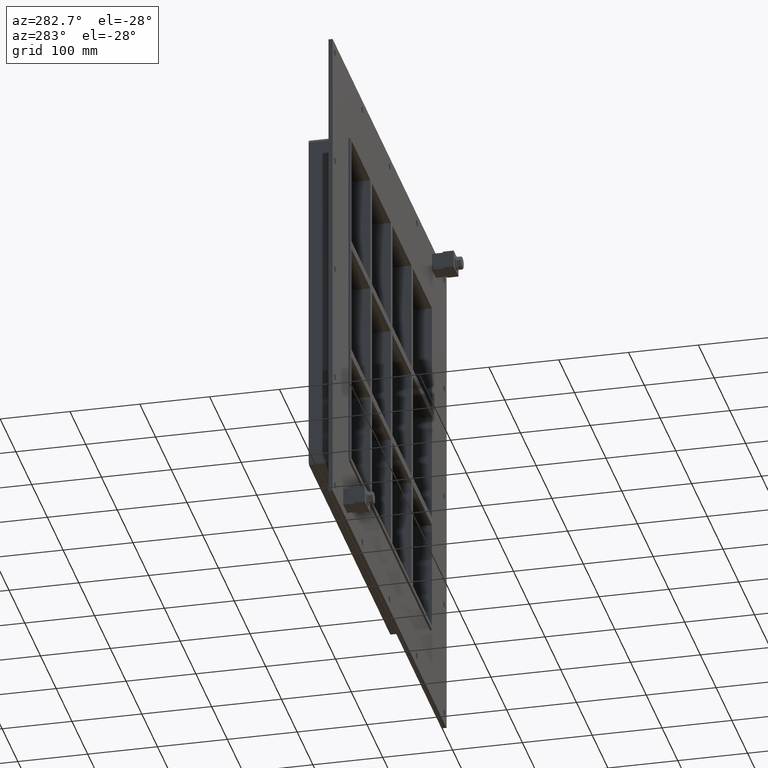
[diagram: clean part render]
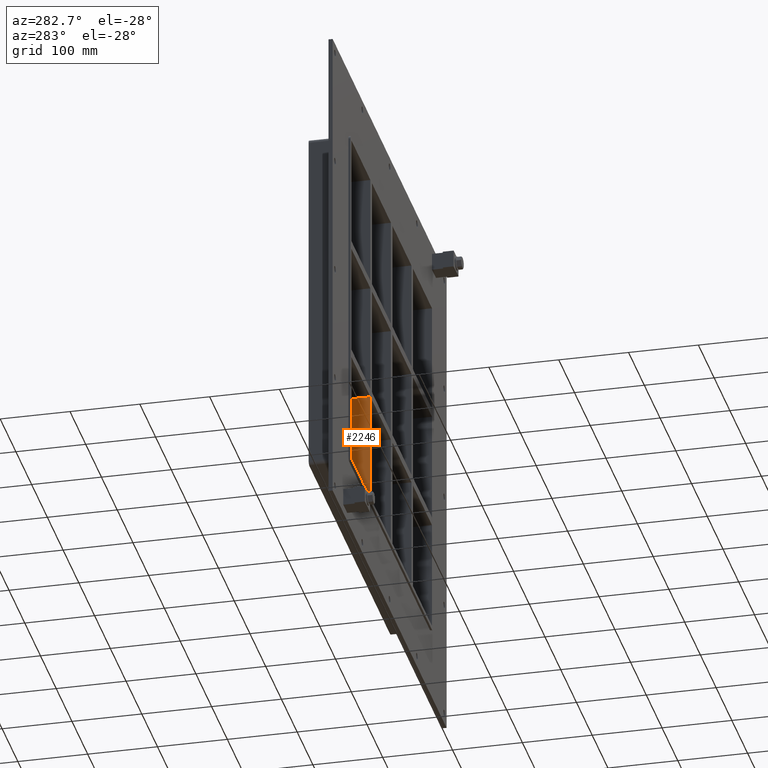
[diagram: same view with one face highlighted and labeled with its STEP entity id]
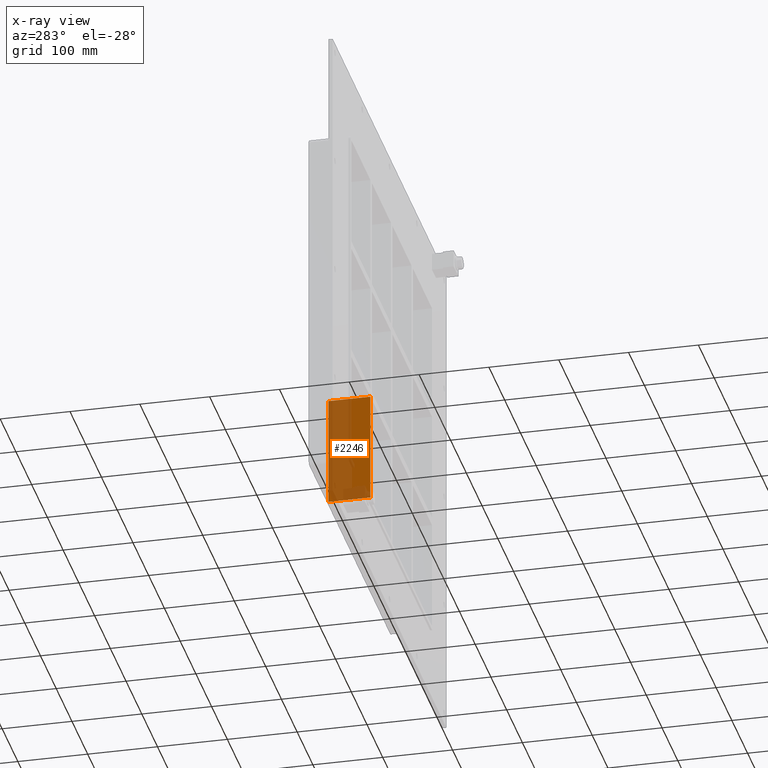
[diagram: x-ray of the same camera — body ghosted, the highlighted face saturated]
A machine part, auxiliary view. The second image highlights one B-rep face of the part: STEP entity #2246.
The next image is the same camera in x-ray: the body ghosted, the highlighted face saturated — about 60% of this face is hidden behind the body in this view.
In plain terms, the highlighted planar face has unit normal (-1, 0, 0).
Its self-contained STEP definition (entity closure, byte-faithful):
#1350=CARTESIAN_POINT('',(-135.49999999999903,57.0,-251.24999999999997));
#1351=VERTEX_POINT('',#1350);
#1358=CARTESIAN_POINT('',(-135.49999999999903,57.0,-91.750000000010886));
#1359=VERTEX_POINT('',#1358);
#1360=CARTESIAN_POINT('',(-135.49999999999903,57.0,-251.24999999999997));
#1361=DIRECTION('',(0.0,0.0,1.0));
#1362=VECTOR('',#1361,159.49999999998909);
#1363=LINE('',#1360,#1362);
#1364=EDGE_CURVE('',#1351,#1359,#1363,.T.);
#1997=CARTESIAN_POINT('',(-135.49999999999903,-3.0,-91.750000000010886));
#1998=VERTEX_POINT('',#1997);
#2007=CARTESIAN_POINT('',(-135.49999999999903,-3.0,-251.24999999999997));
#2008=VERTEX_POINT('',#2007);
#2009=CARTESIAN_POINT('',(-135.49999999999903,-3.0,-251.24999999999997));
#2010=DIRECTION('',(0.0,0.0,1.0));
#2011=VECTOR('',#2010,159.49999999998909);
#2012=LINE('',#2009,#2011);
#2013=EDGE_CURVE('',#2008,#1998,#2012,.T.);
#2148=CARTESIAN_POINT('',(-135.49999999999903,-3.0,-91.7500000000109));
#2149=DIRECTION('',(0.0,1.0,0.0));
#2150=VECTOR('',#2149,60.0);
#2151=LINE('',#2148,#2150);
#2152=EDGE_CURVE('',#1998,#1359,#2151,.T.);
#2230=CARTESIAN_POINT('',(-135.49999999999903,-3.0,-251.24999999999997));
#2231=DIRECTION('',(-1.0,0.0,0.0));
#2232=DIRECTION('',(0.0,0.0,1.0));
#2233=AXIS2_PLACEMENT_3D('',#2230,#2231,#2232);
#2234=PLANE('',#2233);
#2235=ORIENTED_EDGE('',*,*,#2152,.T.);
#2236=ORIENTED_EDGE('',*,*,#1364,.F.);
#2237=CARTESIAN_POINT('',(-135.49999999999903,-3.0,-251.24999999999997));
#2238=DIRECTION('',(0.0,1.0,0.0));
#2239=VECTOR('',#2238,60.000000000000007);
#2240=LINE('',#2237,#2239);
#2241=EDGE_CURVE('',#2008,#1351,#2240,.T.);
#2242=ORIENTED_EDGE('',*,*,#2241,.F.);
#2243=ORIENTED_EDGE('',*,*,#2013,.T.);
#2244=EDGE_LOOP('',(#2235,#2236,#2242,#2243));
#2245=FACE_OUTER_BOUND('',#2244,.T.);
#2246=ADVANCED_FACE('',(#2245),#2234,.T.);